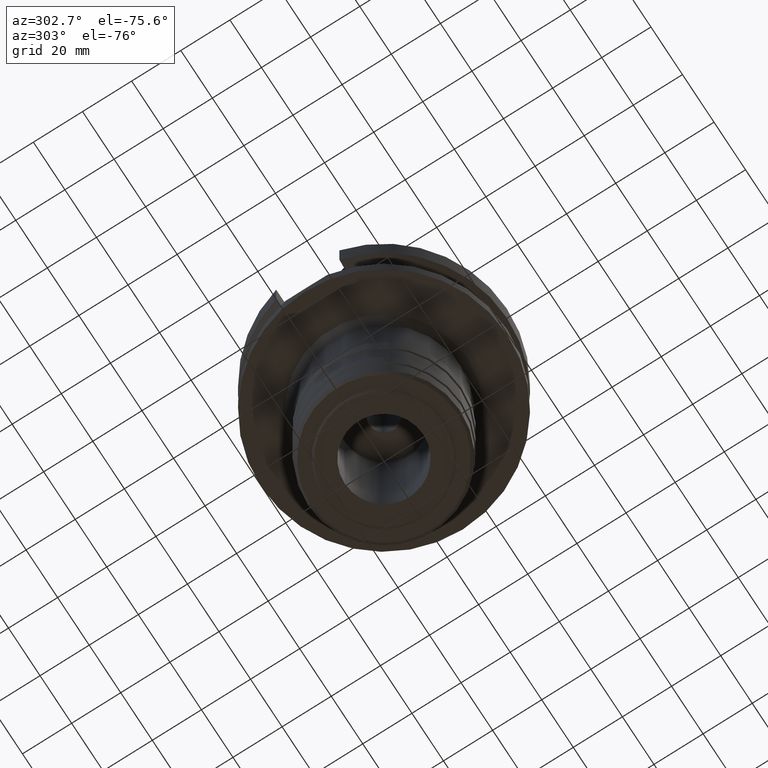
[diagram: clean part render]
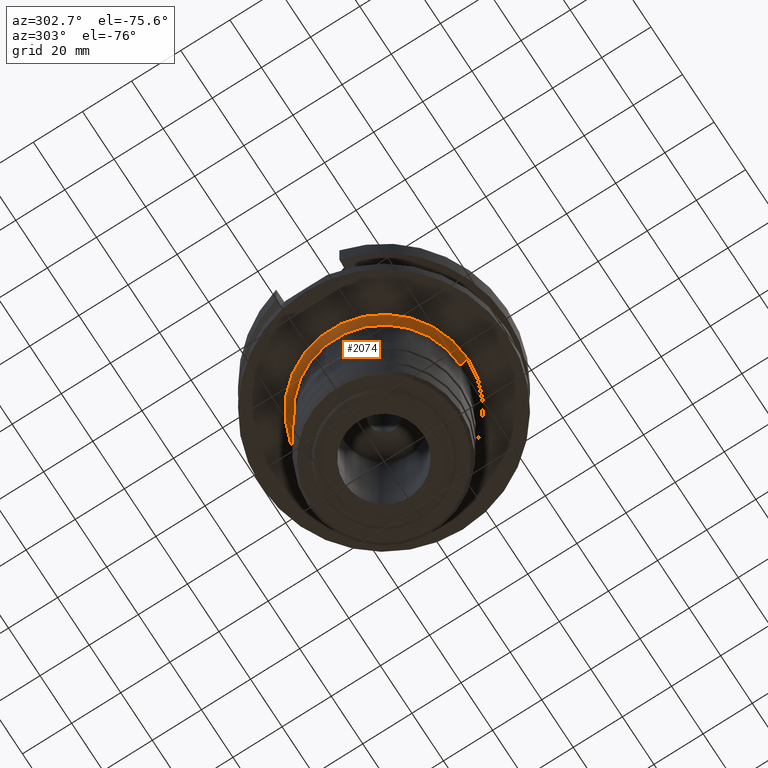
[diagram: same view with one face highlighted and labeled with its STEP entity id]
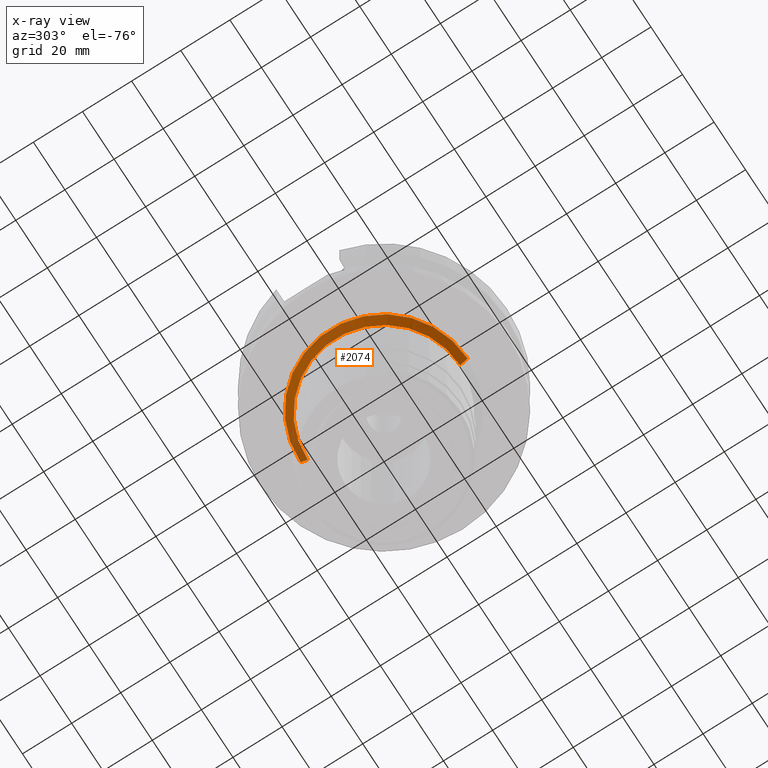
[diagram: x-ray of the same camera — body ghosted, the highlighted face saturated]
A machine part, auxiliary view. The second image highlights one B-rep face of the part: STEP entity #2074.
The next image is the same camera in x-ray: the body ghosted, the highlighted face saturated — about 8% of this face is hidden behind the body in this view.
In plain terms, the highlighted conical surface has half-angle 45 deg.
Its self-contained STEP definition (entity closure, byte-faithful):
#608=DIRECTION('',(0.E0,-7.071067811865E-1,-7.071067811866E-1));
#609=VECTOR('',#608,4.242640687119E0);
#610=CARTESIAN_POINT('',(0.E0,3.4E1,-3.8E1));
#611=LINE('',#610,#609);
#623=DIRECTION('',(0.E0,7.071067811865E-1,-7.071067811865E-1));
#624=VECTOR('',#623,4.242640687119E0);
#625=CARTESIAN_POINT('',(0.E0,-3.4E1,-3.8E1));
#626=LINE('',#625,#624);
#630=CARTESIAN_POINT('',(0.E0,0.E0,-4.1E1));
#631=DIRECTION('',(0.E0,0.E0,-1.E0));
#632=DIRECTION('',(0.E0,-1.E0,0.E0));
#633=AXIS2_PLACEMENT_3D('',#630,#631,#632);
#654=CARTESIAN_POINT('',(0.E0,0.E0,-3.8E1));
#655=DIRECTION('',(0.E0,0.E0,-1.E0));
#656=DIRECTION('',(0.E0,-1.E0,0.E0));
#657=AXIS2_PLACEMENT_3D('',#654,#655,#656);
#1372=CARTESIAN_POINT('',(0.E0,3.1E1,-4.1E1));
#1373=VERTEX_POINT('',#1372);
#1374=CARTESIAN_POINT('',(0.E0,-3.1E1,-4.1E1));
#1375=VERTEX_POINT('',#1374);
#1376=CARTESIAN_POINT('',(0.E0,3.4E1,-3.8E1));
#1377=VERTEX_POINT('',#1376);
#1378=CARTESIAN_POINT('',(0.E0,-3.4E1,-3.8E1));
#1379=VERTEX_POINT('',#1378);
#2062=CARTESIAN_POINT('',(0.E0,0.E0,-3.95E1));
#2063=DIRECTION('',(0.E0,0.E0,1.E0));
#2064=DIRECTION('',(0.E0,1.E0,0.E0));
#2065=AXIS2_PLACEMENT_3D('',#2062,#2063,#2064);
#2066=CONICAL_SURFACE('',#2065,3.25E1,4.5E1);
#2067=ORIENTED_EDGE('',*,*,#2052,.F.);
#2069=ORIENTED_EDGE('',*,*,#2068,.F.);
#2070=ORIENTED_EDGE('',*,*,#2055,.T.);
#2071=ORIENTED_EDGE('',*,*,#2026,.T.);
#2072=EDGE_LOOP('',(#2067,#2069,#2070,#2071));
#2073=FACE_OUTER_BOUND('',#2072,.F.);
#634=CIRCLE('',#633,3.1E1);
#658=CIRCLE('',#657,3.4E1);
#2026=EDGE_CURVE('',#1375,#1373,#634,.T.);
#2052=EDGE_CURVE('',#1377,#1373,#611,.T.);
#2055=EDGE_CURVE('',#1379,#1375,#626,.T.);
#2068=EDGE_CURVE('',#1379,#1377,#658,.T.);
#2074=ADVANCED_FACE('',(#2073),#2066,.T.);